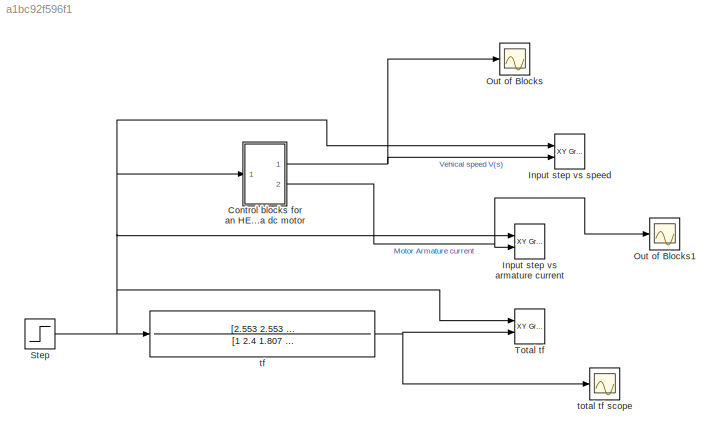
MODEL slx_a1bc92f596f1
KIND model
CONFIG AbsTol = auto
CONFIG EnableMultiTasking = off
CONFIG FixedStep = auto
CONFIG MaxStep = auto
CONFIG MinStep = auto
CONFIG RelTol = 1e-3
CONFIG SampleTimeConstraint = Unconstrained
CONFIG Solver = VariableStepAuto
CONFIG SolverName = VariableStepAuto
CONFIG StartTime = 0.0
CONFIG StopTime = 8
WORKSPACE source: external: MATLAB File  (data not in archive)
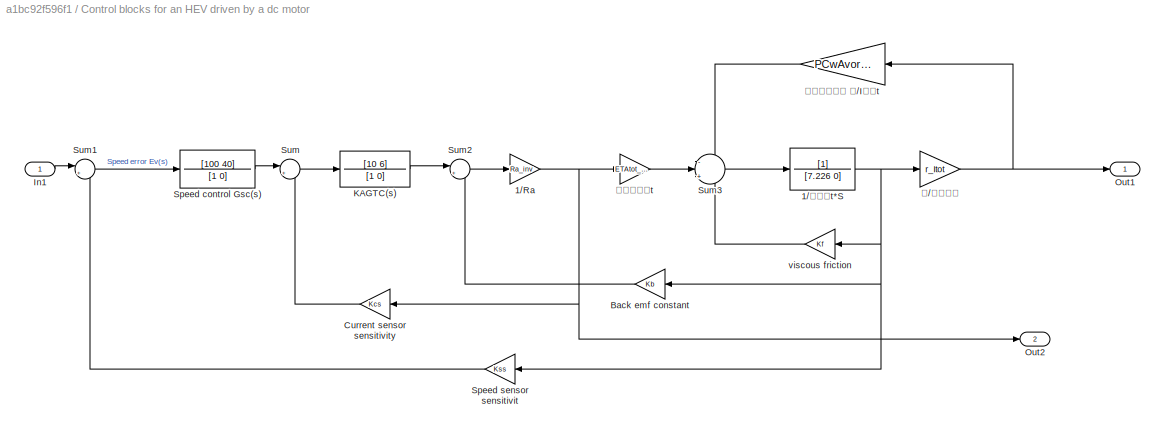
BLOCK [SubSystem]  Control blocks for an HEV driven by a dc motor
  Ports = [1, 2]
  RequestExecContextInheritance = off
BLOCK [Gain]  Control blocks for an HEV driven by a dc motor/1//Ra
  AttributesFormatString = Armature circuit
  Gain = Ra_inv
BLOCK [TransferFcn]  Control blocks for an HEV driven by a dc motor/1//𝐽𝑡𝑜t*S
  AttributesFormatString = Jot is motor inertia
  Denominator = [7.226 0]
BLOCK [Gain]  Control blocks for an HEV driven by a dc motor/Back emf constant
  Gain = Kb
BLOCK [Gain]  Control blocks for an HEV driven by a dc motor/Current sensor sensitivity
  Gain = Kcs
BLOCK [Inport]  Control blocks for an HEV driven by a dc motor/In1
BLOCK [TransferFcn]  Control blocks for an HEV driven by a dc motor/KAGTC(s)
  AttributesFormatString = Torque controller & \npower amplifier
  Denominator = [1 0]
  Numerator = [10 6]
BLOCK [Outport]  Control blocks for an HEV driven by a dc motor/Out1
BLOCK [Outport]  Control blocks for an HEV driven by a dc motor/Out2
  Port = 2
BLOCK [TransferFcn]  Control blocks for an HEV driven by a dc motor/Speed control Gsc(s)
  Denominator = [1 0]
  Numerator = [100 40]
BLOCK [Gain]  Control blocks for an HEV driven by a dc motor/Speed sensor sensitivit
  Gain = Kss
BLOCK [Sum]  Control blocks for an HEV driven by a dc motor/Sum
  Inputs = |+-
  Ports = [2, 1]
BLOCK [Sum]  Control blocks for an HEV driven by a dc motor/Sum1
  Inputs = |+-
  Ports = [2, 1]
BLOCK [Sum]  Control blocks for an HEV driven by a dc motor/Sum2
  Inputs = |+-
  Ports = [2, 1]
BLOCK [Sum]  Control blocks for an HEV driven by a dc motor/Sum3
  Inputs = -|+|-
  Ports = [3, 1]
BLOCK [Gain]  Control blocks for an HEV driven by a dc motor/viscous friction
  Gain = Kf
BLOCK [Gain]  Control blocks for an HEV driven by a dc motor/𝑟//𝑖𝑡𝑜𝑡
  AttributesFormatString = Vehicle dynamics
  Gain = r_Itot
BLOCK [Gain]  Control blocks for an HEV driven by a dc motor/𝜂𝑡𝑜𝑡𝐾t
  AttributesFormatString = Motor torque
  Gain = ETAtot_Kt
BLOCK [Gain]  Control blocks for an HEV driven by a dc motor/𝜌𝑐𝑤𝐴𝑣𝑜 𝑟//I𝑡𝑜t
  AttributesFormatString = Vehicle dynamics
  Gain = PCwAvor_Itot
BLOCK [Reference] Input step vs armature current  REF=simulink/Sinks/XY Graph
  Ports = [2]
  SourceBlock = simulink/Sinks/XY Graph
  SourceProductBaseCode = SL
  SourceType = XY scope.
BLOCK [Reference] Input step vs speed  REF=simulink/Sinks/XY Graph
  Ports = [2]
  SourceBlock = simulink/Sinks/XY Graph
  SourceProductBaseCode = SL
  SourceType = XY scope.
BLOCK [Scope] Out of Blocks
  Floating = off
  NumInputPorts = 1
  Ports = [1]
  ScopeSpecificationString = Simulink.scopes.TimeScopeBlockCfg('CurrentConfiguration', extmgr.ConfigurationSet(extmgr.Configuration('Core','General UI',true),extmgr.Configuration('Core','Source UI',true),extmgr.Configuration('Sources','WiredSimulink',true),extmgr.Configuration('Visuals','Time Domain',true,'SerializedDisplays',{struct('MinYLimReal','-0.79573','MaxYLimReal','7.16155','YLabelReal','','MinYLimMag','0.00000','MaxY...<+1338ch>
BLOCK [Scope] Out of Blocks1
  Floating = off
  NumInputPorts = 1
  Ports = [1]
  ScopeSpecificationString = Simulink.scopes.TimeScopeBlockCfg('CurrentConfiguration', extmgr.ConfigurationSet(extmgr.Configuration('Core','General UI',true),extmgr.Configuration('Core','Source UI',true),extmgr.Configuration('Sources','WiredSimulink',true,'DataLoggingVariableName','ScopeData1'),extmgr.Configuration('Visuals','Time Domain',true,'SerializedDisplays',{struct('MinYLimReal','-90.08556','MaxYLimReal','750.75025','Y...<+1391ch>
BLOCK [Step] Step
  After = 4
  SampleTime = 0
BLOCK [Reference] Total tf  REF=simulink/Sinks/XY Graph
  Ports = [2]
  SourceBlock = simulink/Sinks/XY Graph
  SourceProductBaseCode = SL
  SourceType = XY scope.
BLOCK [TransferFcn] tf
  AttributesFormatString = Equivalent transfer function
  Denominator = [1 2.4 1.807 0.4314]
  Numerator = [2.553 2.553 0.6128]
BLOCK [Scope] total tf scope
  Floating = off
  NumInputPorts = 1
  Ports = [1]
  ScopeSpecificationString = Simulink.scopes.TimeScopeBlockCfg('CurrentConfiguration', extmgr.ConfigurationSet(extmgr.Configuration('Core','General UI',true),extmgr.Configuration('Core','Source UI',true),extmgr.Configuration('Sources','WiredSimulink',true,'DataLoggingVariableName','ScopeData1'),extmgr.Configuration('Visuals','Time Domain',true),extmgr.Configuration('Tools','Plot Navigation',true),extmgr.Configuration('Tools',...<+40ch>
NET  Control blocks for an HEV driven by a dc motor/1//Ra:1 ->  Control blocks for an HEV driven by a dc motor/Current sensor sensitivity:1,  Control blocks for an HEV driven by a dc motor/Out2:1,  Control blocks for an HEV driven by a dc motor/𝜂𝑡𝑜𝑡𝐾t:1
NET  Control blocks for an HEV driven by a dc motor/1//𝐽𝑡𝑜t*S:1 ->  Control blocks for an HEV driven by a dc motor/Back emf constant:1,  Control blocks for an HEV driven by a dc motor/Speed sensor sensitivit:1,  Control blocks for an HEV driven by a dc motor/viscous friction:1,  Control blocks for an HEV driven by a dc motor/𝑟//𝑖𝑡𝑜𝑡:1
LINE  Control blocks for an HEV driven by a dc motor/Back emf constant:1 ->  Control blocks for an HEV driven by a dc motor/Sum2:2
LINE  Control blocks for an HEV driven by a dc motor/Current sensor sensitivity:1 ->  Control blocks for an HEV driven by a dc motor/Sum:2
LINE  Control blocks for an HEV driven by a dc motor/In1:1 ->  Control blocks for an HEV driven by a dc motor/Sum1:1
LINE  Control blocks for an HEV driven by a dc motor/KAGTC(s):1 ->  Control blocks for an HEV driven by a dc motor/Sum2:1
LINE  Control blocks for an HEV driven by a dc motor/Speed control Gsc(s):1 ->  Control blocks for an HEV driven by a dc motor/Sum:1
LINE  Control blocks for an HEV driven by a dc motor/Speed sensor sensitivit:1 ->  Control blocks for an HEV driven by a dc motor/Sum1:2
LINE  Control blocks for an HEV driven by a dc motor/Sum1:1 ->  Control blocks for an HEV driven by a dc motor/Speed control Gsc(s):1
LINE  Control blocks for an HEV driven by a dc motor/Sum2:1 ->  Control blocks for an HEV driven by a dc motor/1//Ra:1
LINE  Control blocks for an HEV driven by a dc motor/Sum3:1 ->  Control blocks for an HEV driven by a dc motor/1//𝐽𝑡𝑜t*S:1
LINE  Control blocks for an HEV driven by a dc motor/Sum:1 ->  Control blocks for an HEV driven by a dc motor/KAGTC(s):1
LINE  Control blocks for an HEV driven by a dc motor/viscous friction:1 ->  Control blocks for an HEV driven by a dc motor/Sum3:3
NET  Control blocks for an HEV driven by a dc motor/𝑟//𝑖𝑡𝑜𝑡:1 ->  Control blocks for an HEV driven by a dc motor/Out1:1,  Control blocks for an HEV driven by a dc motor/𝜌𝑐𝑤𝐴𝑣𝑜 𝑟//I𝑡𝑜t:1
LINE  Control blocks for an HEV driven by a dc motor/𝜂𝑡𝑜𝑡𝐾t:1 ->  Control blocks for an HEV driven by a dc motor/Sum3:2
LINE  Control blocks for an HEV driven by a dc motor/𝜌𝑐𝑤𝐴𝑣𝑜 𝑟//I𝑡𝑜t:1 ->  Control blocks for an HEV driven by a dc motor/Sum3:1
NET  Control blocks for an HEV driven by a dc motor:1 -> Input step vs speed:2, Out of Blocks:1
NET  Control blocks for an HEV driven by a dc motor:2 -> Input step vs armature current:2, Out of Blocks1:1
NET Step:1 ->  Control blocks for an HEV driven by a dc motor:1, Input step vs armature current:1, Input step vs speed:1, Total tf:1, tf:1
NET tf:1 -> Total tf:2, total tf scope:1
note: NET lines group one-source signal fan-out (src -> all destinations, sorted); 1:1 wires keep LINE
